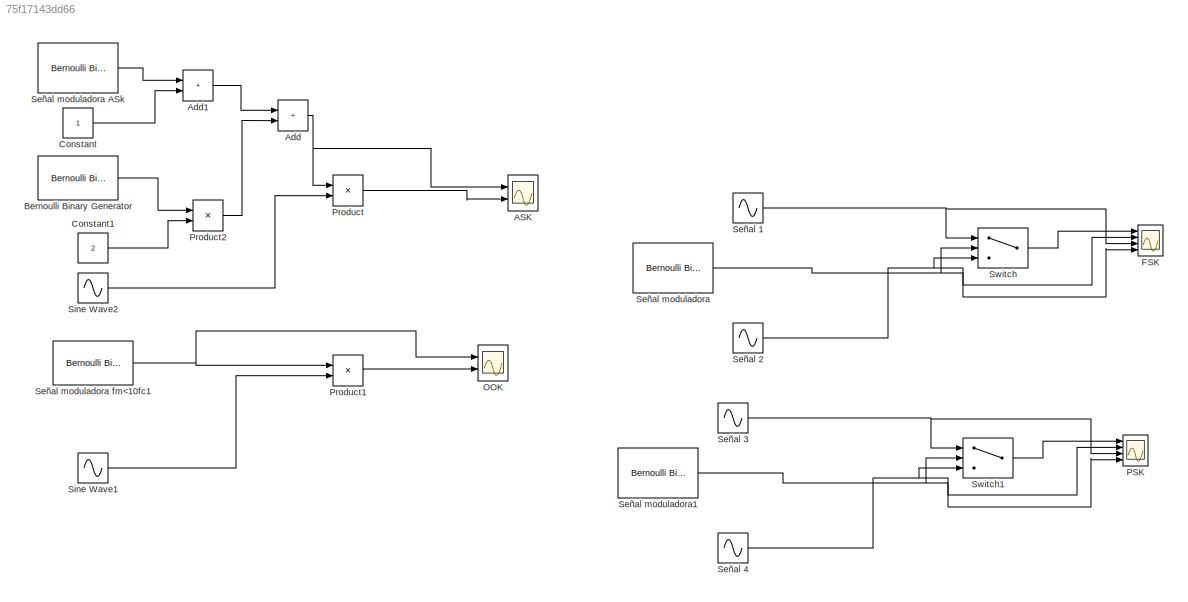
MODEL slx_75f17143dd66
KIND model
CONFIG AbsTol = auto
CONFIG EnableMultiTasking = off
CONFIG FixedStep = auto
CONFIG MaxStep = auto
CONFIG MinStep = auto
CONFIG RelTol = 1e-3
CONFIG SampleTimeConstraint = Unconstrained
CONFIG SolverName = VariableStepAuto
CONFIG StartTime = 0.0
CONFIG StopTime = 0.04
BLOCK [Scope] ASK
  Floating = off
  NumInputPorts = 2
  Ports = [2]
  ScopeSpecificationString = Simulink.scopes.TimeScopeBlockCfg('CurrentConfiguration', extmgr.ConfigurationSet(extmgr.Configuration('Core','General UI',true),extmgr.Configuration('Core','Source UI',true),extmgr.Configuration('Sources','WiredSimulink',true,'DataLoggingVariableName','ScopeData2'),extmgr.Configuration('Visuals','Time Domain',true,'SerializedDisplays',{struct('MinYLimReal','0.625','MaxYLimReal','4.375','YLabelRea...<+2022ch>
BLOCK [Sum] Add
  IconShape = rectangular
  Ports = [2, 1]
BLOCK [Sum] Add1
  IconShape = rectangular
  Ports = [2, 1]
BLOCK [Reference] Bernoulli Binary Generator  REF=commrandsrc3/Bernoulli Binary
Generator
  Ports = [0, 1]
  SourceBlock = commrandsrc3/Bernoulli Binary\nGenerator
  SourceProductBaseCode = CM
  SourceType = Bernoulli Binary Generator
BLOCK [Constant] Constant
BLOCK [Constant] Constant1
  Value = 2
BLOCK [Scope] FSK
  Floating = off
  NumInputPorts = 4
  Ports = [4]
  ScopeSpecificationString = Simulink.scopes.TimeScopeBlockCfg('CurrentConfiguration', extmgr.ConfigurationSet(extmgr.Configuration('Core','General UI',true),extmgr.Configuration('Core','Source UI',true),extmgr.Configuration('Sources','WiredSimulink',true),extmgr.Configuration('Visuals','Time Domain',true,'SerializedDisplays',{struct('MinYLimReal','-21.65064','MaxYLimReal','21.13162','YLabelReal','','MinYLimMag','0.00000','Ma...<+3366ch>
BLOCK [Scope] OOK
  Floating = off
  NumInputPorts = 2
  Ports = [2]
  ScopeSpecificationString = Simulink.scopes.TimeScopeBlockCfg('CurrentConfiguration', extmgr.ConfigurationSet(extmgr.Configuration('Core','General UI',true),extmgr.Configuration('Core','Source UI',true),extmgr.Configuration('Sources','WiredSimulink',true,'DataLoggingVariableName','ScopeData1'),extmgr.Configuration('Visuals','Time Domain',true,'SerializedDisplays',{struct('MinYLimReal','-12.4997','MaxYLimReal','12.4997','YLab...<+1422ch>
BLOCK [Scope] PSK
  Floating = off
  NumInputPorts = 4
  Ports = [4]
  ScopeSpecificationString = Simulink.scopes.TimeScopeBlockCfg('CurrentConfiguration', extmgr.ConfigurationSet(extmgr.Configuration('Core','General UI',true),extmgr.Configuration('Core','Source UI',true),extmgr.Configuration('Sources','WiredSimulink',true,'DataLoggingVariableName','ScopeData3'),extmgr.Configuration('Visuals','Time Domain',true,'SerializedDisplays',{struct('MinYLimReal','-21.65064','MaxYLimReal','21.13162','YL...<+3433ch>
BLOCK [Product] Product
  Ports = [2, 1]
BLOCK [Product] Product1
  Ports = [2, 1]
BLOCK [Product] Product2
  Ports = [2, 1]
BLOCK [Sin] Señal 1
  Amplitude = 20
  Frequency = 150000*2*pi()
  Ports = [0, 1]
  SampleTime = 0
BLOCK [Sin] Señal 2
  Amplitude = 20
  Frequency = 300000*2*pi()
  Ports = [0, 1]
  SampleTime = 0
BLOCK [Sin] Señal 3
  Amplitude = 20
  Frequency = 1500*2*pi()
  Ports = [0, 1]
  SampleTime = 0
BLOCK [Sin] Señal 4
  Amplitude = 20
  Frequency = 1500*2*pi()
  Phase = 3.66519
  Ports = [0, 1]
  SampleTime = 0
BLOCK [Reference] Señal moduladora  REF=commrandsrc3/Bernoulli Binary
Generator
  Ports = [0, 1]
  SourceBlock = commrandsrc3/Bernoulli Binary\nGenerator
  SourceProductBaseCode = CM
  SourceType = Bernoulli Binary Generator
BLOCK [Reference] Señal moduladora ASk  REF=commrandsrc3/Bernoulli Binary
Generator
  Ports = [0, 1]
  SourceBlock = commrandsrc3/Bernoulli Binary\nGenerator
  SourceProductBaseCode = CM
  SourceType = Bernoulli Binary Generator
BLOCK [Reference] Señal moduladora fm<10fc1  REF=commrandsrc3/Bernoulli Binary
Generator
  Ports = [0, 1]
  SourceBlock = commrandsrc3/Bernoulli Binary\nGenerator
  SourceProductBaseCode = CM
  SourceType = Bernoulli Binary Generator
BLOCK [Reference] Señal moduladora1  REF=commrandsrc3/Bernoulli Binary
Generator
  Ports = [0, 1]
  SourceBlock = commrandsrc3/Bernoulli Binary\nGenerator
  SourceProductBaseCode = CM
  SourceType = Bernoulli Binary Generator
BLOCK [Sin] Sine Wave1
  Amplitude = 10
  Frequency = 2000*2*pi()
  Ports = [0, 1]
  SampleTime = 0
BLOCK [Sin] Sine Wave2
  Frequency = 1000*2*pi()
  Ports = [0, 1]
  SampleTime = 0
BLOCK [Switch] Switch
  InputSameDT = off
  SaturateOnIntegerOverflow = off
  Threshold = 1
BLOCK [Switch] Switch1
  InputSameDT = off
  SaturateOnIntegerOverflow = off
  Threshold = 1
LINE Add1:1 -> Add:1
NET Add:1 -> ASK:1, Product:1
LINE Bernoulli Binary Generator:1 -> Product2:1
LINE Constant1:1 -> Product2:2
LINE Constant:1 -> Add1:2
LINE Product1:1 -> OOK:2
LINE Product2:1 -> Add:2
LINE Product:1 -> ASK:2
NET Señal 1:1 -> FSK:3, Switch:1
NET Señal 2:1 -> FSK:4, Switch:3
NET Señal 3:1 -> PSK:3, Switch1:1
NET Señal 4:1 -> PSK:4, Switch1:3
LINE Señal moduladora ASk:1 -> Add1:1
NET Señal moduladora fm<10fc1:1 -> OOK:1, Product1:1
NET Señal moduladora1:1 -> PSK:2, Switch1:2
NET Señal moduladora:1 -> FSK:2, Switch:2
LINE Sine Wave1:1 -> Product1:2
LINE Sine Wave2:1 -> Product:2
LINE Switch1:1 -> PSK:1
LINE Switch:1 -> FSK:1
note: NET lines group one-source signal fan-out (src -> all destinations, sorted); 1:1 wires keep LINE
